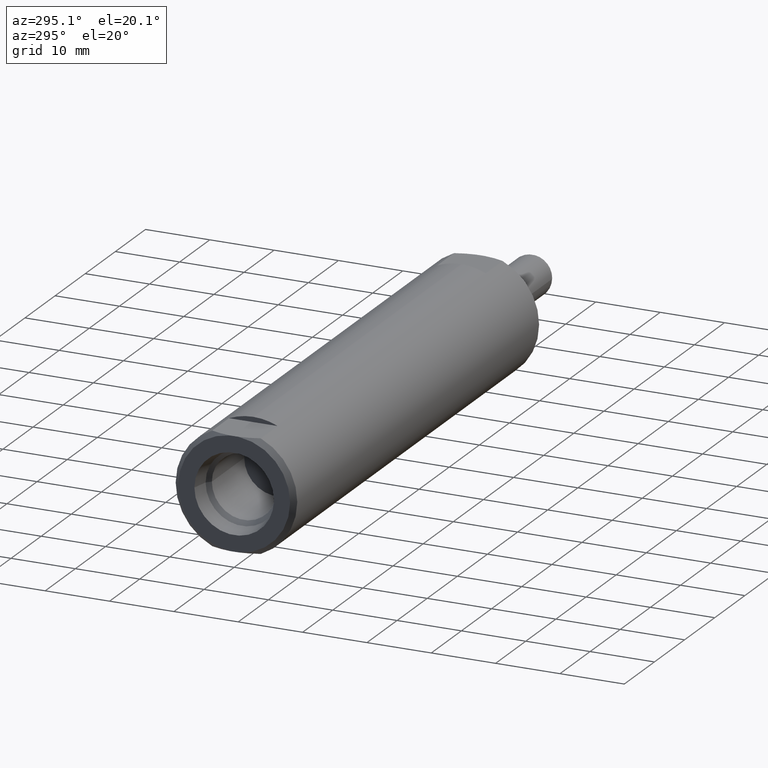
[diagram: clean part render]
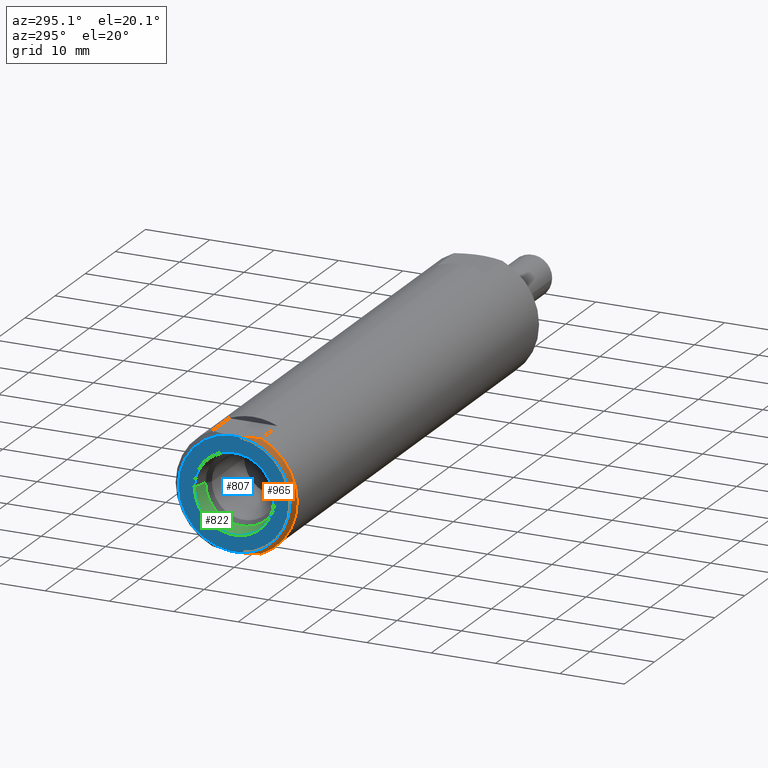
[diagram: same view with three faces highlighted in distinct colors, each labeled with its STEP entity id]
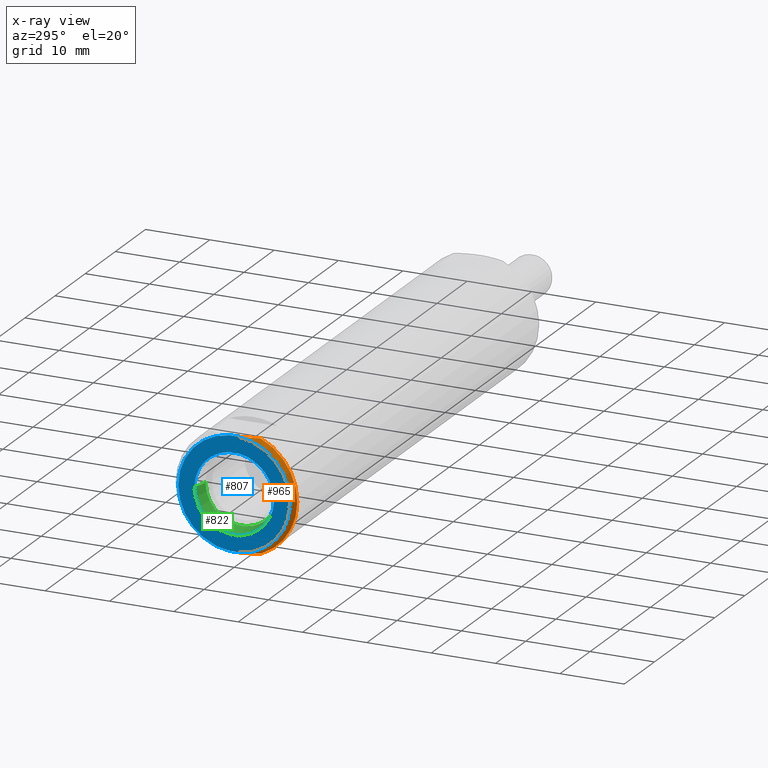
[diagram: x-ray of the same camera — body ghosted, the three highlighted faces saturated]
A machine part, auxiliary view with three faces highlighted in distinct colors.
The next image is the same camera in x-ray (body ghosted, the three faces saturated) — at least one of them is partly hidden behind the body in this view.
Their STEP definitions:

[orange] entity #965 — the highlighted conical surface has half-angle 45 deg.
#139=CARTESIAN_POINT('',(0.E0,0.E0,0.E0));
#140=DIRECTION('',(1.E0,0.E0,0.E0));
#141=DIRECTION('',(0.E0,-7.641599032381E-2,9.970760233918E-1));
#142=AXIS2_PLACEMENT_3D('',#139,#140,#141);
#283=CARTESIAN_POINT('',(0.E0,-2.613426869074E-2,3.41E-1));
#284=CARTESIAN_POINT('',(1.008417468084E-3,-3.933068823345E-2,3.41E-1));
#285=CARTESIAN_POINT('',(4.583081938821E-3,-6.599617569636E-2,3.41E-1));
#286=CARTESIAN_POINT('',(1.448157356460E-2,-1.063578946399E-1,3.41E-1));
#287=CARTESIAN_POINT('',(2.430565910798E-2,-1.344225513682E-1,3.41E-1));
#288=CARTESIAN_POINT('',(3.E-2,-1.486707772227E-1,3.41E-1));
#301=CARTESIAN_POINT('',(3.E-2,-1.486707772227E-1,-3.41E-1));
#302=CARTESIAN_POINT('',(2.427521163559E-2,-1.343463665258E-1,-3.41E-1));
#303=CARTESIAN_POINT('',(1.442500705858E-2,-1.061751476201E-1,-3.41E-1));
#304=CARTESIAN_POINT('',(4.559062956571E-3,-6.585273961284E-2,-3.41E-1));
#305=CARTESIAN_POINT('',(1.003696272238E-3,-3.926890540728E-2,-3.41E-1));
#306=CARTESIAN_POINT('',(0.E0,-2.613426869074E-2,-3.41E-1));
#335=CARTESIAN_POINT('',(3.E-2,0.E0,0.E0));
#336=DIRECTION('',(1.E0,0.E0,0.E0));
#337=DIRECTION('',(0.E0,-3.996526269427E-1,9.166666666667E-1));
#338=AXIS2_PLACEMENT_3D('',#335,#336,#337);
#710=CARTESIAN_POINT('',(0.E0,-2.613426869074E-2,3.41E-1));
#712=VERTEX_POINT('',#710);
#714=CARTESIAN_POINT('',(0.E0,-2.613426869074E-2,-3.41E-1));
#716=VERTEX_POINT('',#714);
#732=CARTESIAN_POINT('',(3.E-2,-1.486707772227E-1,3.41E-1));
#733=VERTEX_POINT('',#732);
#736=CARTESIAN_POINT('',(3.E-2,-1.486707772227E-1,-3.41E-1));
#737=VERTEX_POINT('',#736);
#953=CARTESIAN_POINT('',(1.5E-2,0.E0,0.E0));
#954=DIRECTION('',(1.E0,0.E0,0.E0));
#955=DIRECTION('',(0.E0,0.E0,1.E0));
#956=AXIS2_PLACEMENT_3D('',#953,#954,#955);
#957=CONICAL_SURFACE('',#956,3.57E-1,4.5E1);
#958=ORIENTED_EDGE('',*,*,#916,.T.);
#960=ORIENTED_EDGE('',*,*,#959,.T.);
#961=ORIENTED_EDGE('',*,*,#941,.T.);
#962=ORIENTED_EDGE('',*,*,#793,.F.);
#963=EDGE_LOOP('',(#958,#960,#961,#962));
#964=FACE_OUTER_BOUND('',#963,.F.);
#143=CIRCLE('',#142,3.42E-1);
#289=B_SPLINE_CURVE_WITH_KNOTS('',3,(#283,#284,#285,#286,#287,#288),
.UNSPECIFIED.,.F.,.F.,(4,1,1,4),(0.E0,3.333333333333E-1,6.666666666667E-1,1.E0),
.UNSPECIFIED.);
#307=B_SPLINE_CURVE_WITH_KNOTS('',3,(#301,#302,#303,#304,#305,#306),
.UNSPECIFIED.,.F.,.F.,(4,1,1,4),(0.E0,3.333333333333E-1,6.666666666667E-1,1.E0),
.UNSPECIFIED.);
#339=CIRCLE('',#338,3.72E-1);
#793=EDGE_CURVE('',#712,#716,#143,.T.);
#916=EDGE_CURVE('',#712,#733,#289,.T.);
#941=EDGE_CURVE('',#737,#716,#307,.T.);
#959=EDGE_CURVE('',#733,#737,#339,.T.);
#965=ADVANCED_FACE('',(#964),#957,.T.);

[blue] entity #807 — the highlighted planar face has unit normal (1, 0, 0).
#115=CARTESIAN_POINT('',(0.E0,0.E0,0.E0));
#116=DIRECTION('',(-1.E0,0.E0,0.E0));
#117=DIRECTION('',(0.E0,1.E0,0.E0));
#118=AXIS2_PLACEMENT_3D('',#115,#116,#117);
#124=CARTESIAN_POINT('',(0.E0,0.E0,0.E0));
#125=DIRECTION('',(-1.E0,0.E0,0.E0));
#126=DIRECTION('',(0.E0,-1.E0,0.E0));
#127=AXIS2_PLACEMENT_3D('',#124,#125,#126);
#132=DIRECTION('',(0.E0,1.E0,0.E0));
#133=VECTOR('',#132,5.226853738148E-2);
#134=CARTESIAN_POINT('',(0.E0,-2.613426869074E-2,3.41E-1));
#135=LINE('',#134,#133);
#139=CARTESIAN_POINT('',(0.E0,0.E0,0.E0));
#140=DIRECTION('',(1.E0,0.E0,0.E0));
#141=DIRECTION('',(0.E0,-7.641599032381E-2,9.970760233918E-1));
#142=AXIS2_PLACEMENT_3D('',#139,#140,#141);
#147=DIRECTION('',(0.E0,1.E0,0.E0));
#148=VECTOR('',#147,5.226853738149E-2);
#149=CARTESIAN_POINT('',(0.E0,-2.613426869074E-2,-3.41E-1));
#150=LINE('',#149,#148);
#154=CARTESIAN_POINT('',(0.E0,0.E0,0.E0));
#155=DIRECTION('',(1.E0,0.E0,0.E0));
#156=DIRECTION('',(0.E0,7.641599032381E-2,-9.970760233918E-1));
#157=AXIS2_PLACEMENT_3D('',#154,#155,#156);
#706=CARTESIAN_POINT('',(0.E0,2.435E-1,0.E0));
#707=CARTESIAN_POINT('',(0.E0,-2.435E-1,0.E0));
#708=VERTEX_POINT('',#706);
#709=VERTEX_POINT('',#707);
#710=CARTESIAN_POINT('',(0.E0,-2.613426869074E-2,3.41E-1));
#711=CARTESIAN_POINT('',(0.E0,2.613426869074E-2,3.41E-1));
#712=VERTEX_POINT('',#710);
#713=VERTEX_POINT('',#711);
#714=CARTESIAN_POINT('',(0.E0,-2.613426869074E-2,-3.41E-1));
#715=CARTESIAN_POINT('',(0.E0,2.613426869074E-2,-3.41E-1));
#716=VERTEX_POINT('',#714);
#717=VERTEX_POINT('',#715);
#786=CARTESIAN_POINT('',(0.E0,0.E0,0.E0));
#787=DIRECTION('',(1.E0,0.E0,0.E0));
#788=DIRECTION('',(0.E0,0.E0,-1.E0));
#789=AXIS2_PLACEMENT_3D('',#786,#787,#788);
#790=PLANE('',#789);
#792=ORIENTED_EDGE('',*,*,#791,.F.);
#794=ORIENTED_EDGE('',*,*,#793,.T.);
#796=ORIENTED_EDGE('',*,*,#795,.T.);
#798=ORIENTED_EDGE('',*,*,#797,.T.);
#799=EDGE_LOOP('',(#792,#794,#796,#798));
#800=FACE_OUTER_BOUND('',#799,.F.);
#802=ORIENTED_EDGE('',*,*,#801,.T.);
#804=ORIENTED_EDGE('',*,*,#803,.T.);
#805=EDGE_LOOP('',(#802,#804));
#806=FACE_BOUND('',#805,.F.);
#119=CIRCLE('',#118,2.435E-1);
#128=CIRCLE('',#127,2.435E-1);
#143=CIRCLE('',#142,3.42E-1);
#158=CIRCLE('',#157,3.42E-1);
#791=EDGE_CURVE('',#712,#713,#135,.T.);
#793=EDGE_CURVE('',#712,#716,#143,.T.);
#795=EDGE_CURVE('',#716,#717,#150,.T.);
#797=EDGE_CURVE('',#717,#713,#158,.T.);
#801=EDGE_CURVE('',#708,#709,#119,.T.);
#803=EDGE_CURVE('',#709,#708,#128,.T.);
#807=ADVANCED_FACE('',(#800,#806),#790,.F.);

[green] entity #822 — the highlighted conical surface has half-angle 12 deg.
#115=CARTESIAN_POINT('',(0.E0,0.E0,0.E0));
#116=DIRECTION('',(-1.E0,0.E0,0.E0));
#117=DIRECTION('',(0.E0,1.E0,0.E0));
#118=AXIS2_PLACEMENT_3D('',#115,#116,#117);
#162=CARTESIAN_POINT('',(1.005E-1,0.E0,0.E0));
#163=DIRECTION('',(-1.E0,0.E0,0.E0));
#164=DIRECTION('',(0.E0,1.E0,0.E0));
#165=AXIS2_PLACEMENT_3D('',#162,#163,#164);
#170=DIRECTION('',(-9.781476007338E-1,-2.079116908178E-1,0.E0));
#171=VECTOR('',#170,1.027452297839E-1);
#172=CARTESIAN_POINT('',(1.005E-1,-2.221380655522E-1,0.E0));
#173=LINE('',#172,#171);
#185=DIRECTION('',(-9.781476007338E-1,2.079116908178E-1,0.E0));
#186=VECTOR('',#185,1.027452297839E-1);
#187=CARTESIAN_POINT('',(1.005E-1,2.221380655522E-1,0.E0));
#188=LINE('',#187,#186);
#698=CARTESIAN_POINT('',(1.005E-1,2.221380655522E-1,0.E0));
#699=VERTEX_POINT('',#698);
#704=CARTESIAN_POINT('',(1.005E-1,-2.221380655522E-1,0.E0));
#705=VERTEX_POINT('',#704);
#706=CARTESIAN_POINT('',(0.E0,2.435E-1,0.E0));
#707=CARTESIAN_POINT('',(0.E0,-2.435E-1,0.E0));
#708=VERTEX_POINT('',#706);
#709=VERTEX_POINT('',#707);
#808=CARTESIAN_POINT('',(5.025E-2,0.E0,0.E0));
#809=DIRECTION('',(-1.E0,0.E0,0.E0));
#810=DIRECTION('',(0.E0,1.E0,0.E0));
#811=AXIS2_PLACEMENT_3D('',#808,#809,#810);
#812=CONICAL_SURFACE('',#811,2.328190327761E-1,1.2E1);
#813=ORIENTED_EDGE('',*,*,#801,.F.);
#815=ORIENTED_EDGE('',*,*,#814,.F.);
#817=ORIENTED_EDGE('',*,*,#816,.T.);
#819=ORIENTED_EDGE('',*,*,#818,.T.);
#820=EDGE_LOOP('',(#813,#815,#817,#819));
#821=FACE_OUTER_BOUND('',#820,.F.);
#119=CIRCLE('',#118,2.435E-1);
#166=CIRCLE('',#165,2.221380655522E-1);
#801=EDGE_CURVE('',#708,#709,#119,.T.);
#814=EDGE_CURVE('',#699,#708,#188,.T.);
#816=EDGE_CURVE('',#699,#705,#166,.T.);
#818=EDGE_CURVE('',#705,#709,#173,.T.);
#822=ADVANCED_FACE('',(#821),#812,.F.);